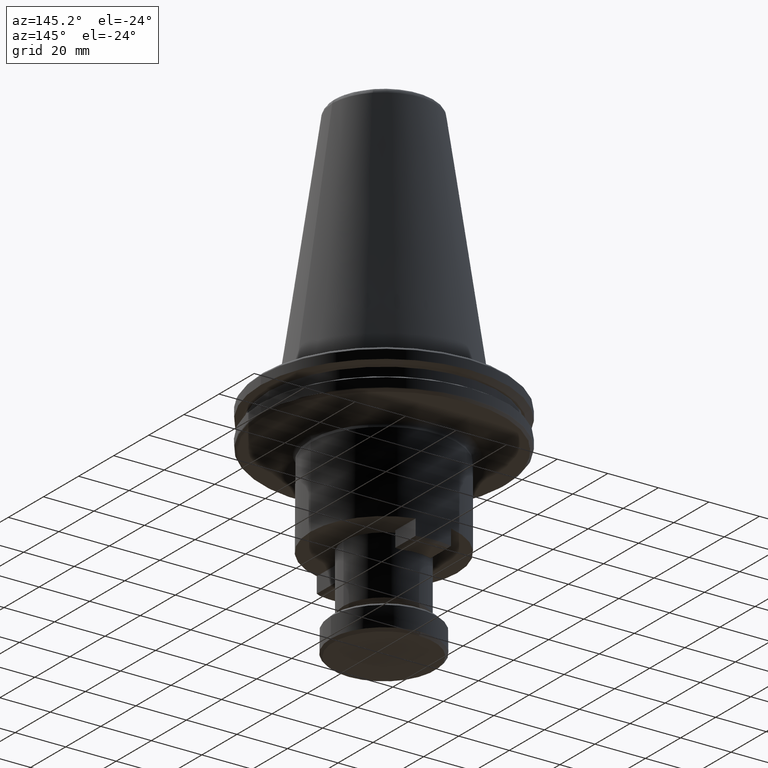
[diagram: clean part render]
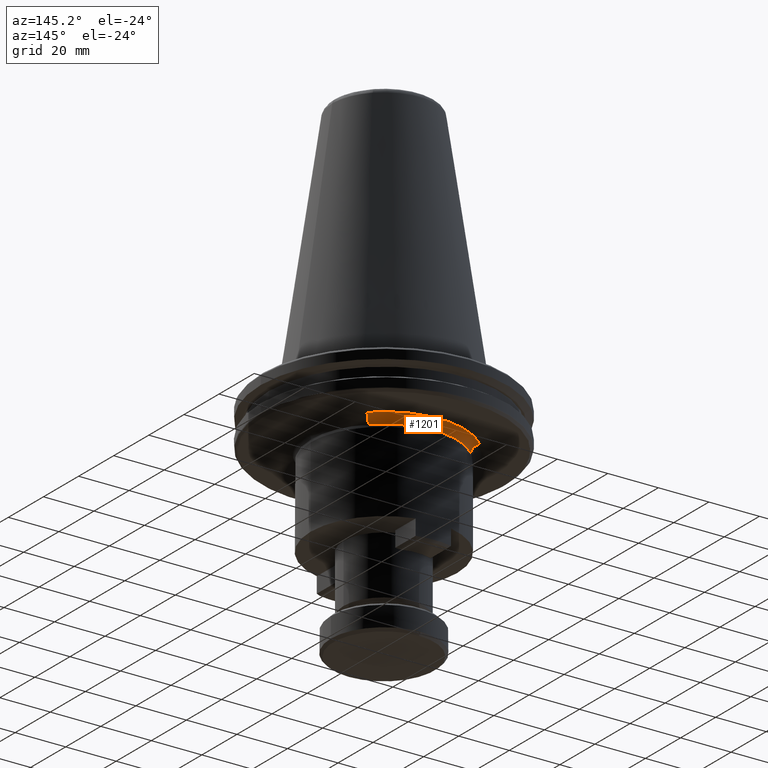
[diagram: same view with one face highlighted and labeled with its STEP entity id]
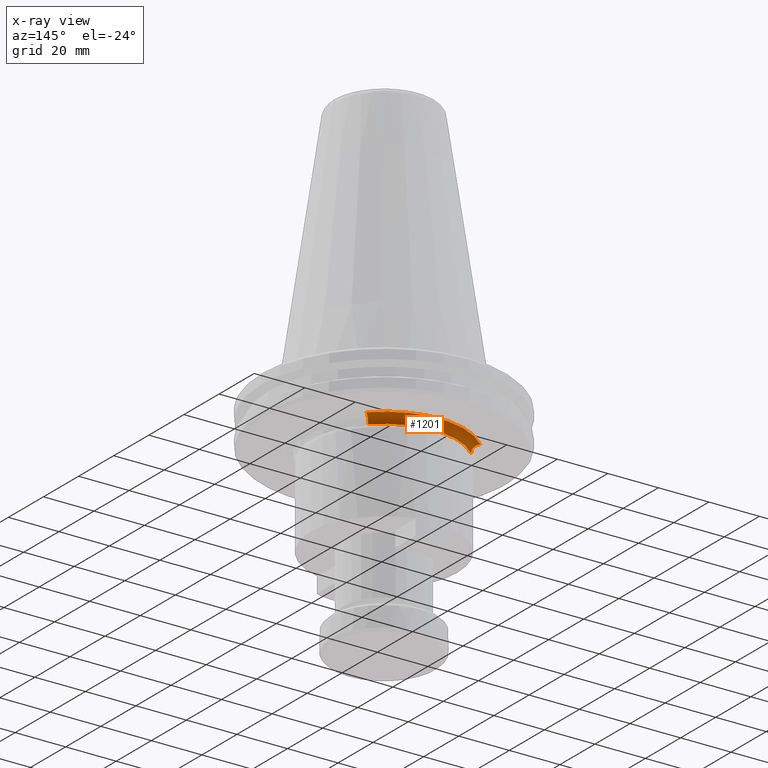
[diagram: x-ray of the same camera — body ghosted, the highlighted face saturated]
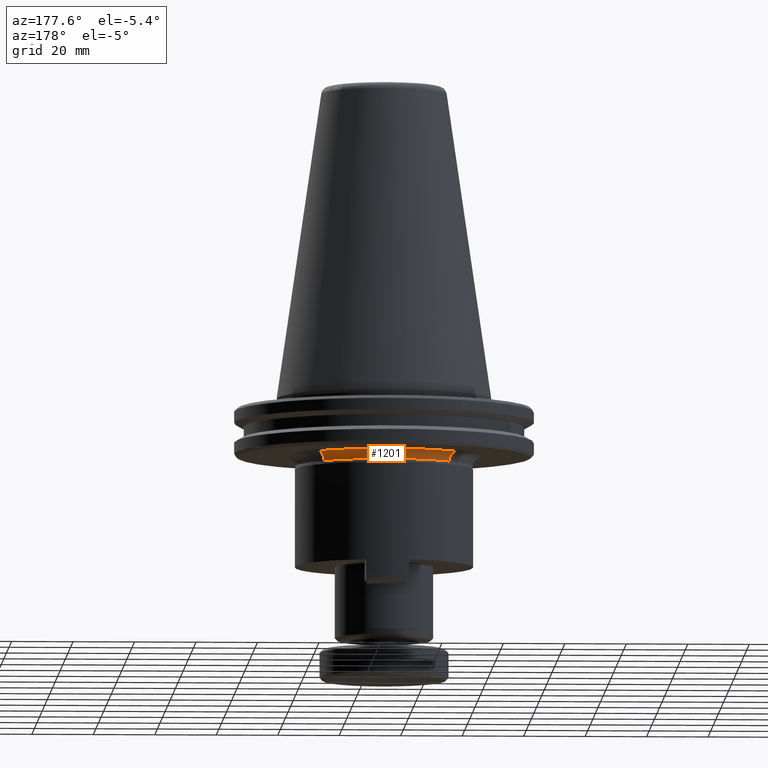
[diagram: same view with one face highlighted and labeled with its STEP entity id]
A machine part, auxiliary view. The second image highlights one B-rep face of the part: STEP entity #1201.
The next image is the same camera in x-ray: the body ghosted, the highlighted face saturated — about 0% of this face is hidden behind the body in this view.
A second angle (auxiliary view) of the same face is appended — the face is thin or edge-on in the first view.
In plain terms, the highlighted toroidal blend (fillet) surface has major radius 31.8 mm and minor (blend) radius 3 mm.
Its self-contained STEP definition (entity closure, byte-faithful):
#17 = DIRECTION ( 'NONE',  ( -0.0000000000000000000, -0.0000000000000000000, -1.000000000000000000 ) ) ;
#65 = CARTESIAN_POINT ( 'NONE',  ( 91.78900745422478700, 111.8872747687010000, 75.89950278000849000 ) ) ;
#125 = AXIS2_PLACEMENT_3D ( 'NONE', #65, #17, #4940 ) ;
#147 = CARTESIAN_POINT ( 'NONE',  ( 113.0323624108361900, 133.1306297253894100, 78.89950278028037200 ) ) ;
#403 = ORIENTED_EDGE ( 'NONE', *, *, #2907, .T. ) ;
#420 = DIRECTION ( 'NONE',  ( -0.0000000000000000000, -0.0000000000000000000, -1.000000000000000000 ) ) ;
#432 =( BOUNDED_CURVE ( )  B_SPLINE_CURVE ( 3, ( #4012, #1301, #147, #2850 ),
 .UNSPECIFIED., .F., .F. ) 
 B_SPLINE_CURVE_WITH_KNOTS ( ( 4, 4 ),
 ( 0.0000000000000000000, 0.004686477919127288700 ),
 .UNSPECIFIED. ) 
 CURVE ( )  GEOMETRIC_REPRESENTATION_ITEM ( )  RATIONAL_B_SPLINE_CURVE ( ( 0.5603505959675825200, 0.4509353361155097900, 0.4509353362434101500, 0.5603505963512829300 ) ) 
 REPRESENTATION_ITEM ( '' )  );
#573 = EDGE_LOOP ( 'NONE', ( #4118, #2963, #403, #3418 ) ) ;
#957 = CARTESIAN_POINT ( 'NONE',  ( 70.54565249761334700, 133.1306297253893800, 78.89950278028040000 ) ) ;
#1044 = VERTEX_POINT ( 'NONE', #4808 ) ;
#1128 = FACE_OUTER_BOUND ( 'NONE', #573, .T. ) ;
#1190 = TOROIDAL_SURFACE ( 'NONE', #4186, 31.80000001239289300, 3.000000013688315800 ) ;
#1201 = ADVANCED_FACE ( 'NONE', ( #1128 ), #1190, .F. ) ;
#1301 = CARTESIAN_POINT ( 'NONE',  ( 112.1536827530675900, 132.2519500672640000, 77.65686209428039900 ) ) ;
#1413 = CARTESIAN_POINT ( 'NONE',  ( 71.42433215696819100, 132.2519500659575400, 75.89950277928048200 ) ) ;
#1752 = CARTESIAN_POINT ( 'NONE',  ( 114.2751277787167800, 134.3733950931930700, 78.89950277698491700 ) ) ;
#1848 = EDGE_CURVE ( 'NONE', #2738, #4743, #4902, .T. ) ;
#2378 = EDGE_CURVE ( 'NONE', #4743, #3536, #432, .T. ) ;
#2471 = CARTESIAN_POINT ( 'NONE',  ( 71.42433215538199000, 132.2519500672639800, 77.65686209428039900 ) ) ;
#2535 =( BOUNDED_CURVE ( )  B_SPLINE_CURVE ( 3, ( #4789, #2471, #957, #3663 ),
 .UNSPECIFIED., .F., .F. ) 
 B_SPLINE_CURVE_WITH_KNOTS ( ( 4, 4 ),
 ( 0.0000000000000000000, 0.004686477919127371100 ),
 .UNSPECIFIED. ) 
 CURVE ( )  GEOMETRIC_REPRESENTATION_ITEM ( )  RATIONAL_B_SPLINE_CURVE ( ( 0.5603505959675828500, 0.4509353361155100700, 0.4509353362434104200, 0.5603505963512832600 ) ) 
 REPRESENTATION_ITEM ( '' )  );
#2550 = EDGE_CURVE ( 'NONE', #2738, #1044, #2535, .T. ) ;
#2738 = VERTEX_POINT ( 'NONE', #1413 ) ;
#2744 = CARTESIAN_POINT ( 'NONE',  ( 91.78900745422478700, 111.8872747687010000, 78.89950277698491700 ) ) ;
#2850 = CARTESIAN_POINT ( 'NONE',  ( 114.2751277787167800, 134.3733950931930700, 78.89950277698491700 ) ) ;
#2907 = EDGE_CURVE ( 'NONE', #1044, #3536, #4010, .T. ) ;
#2910 = AXIS2_PLACEMENT_3D ( 'NONE', #2744, #420, #3153 ) ;
#2947 = DIRECTION ( 'NONE',  ( -1.000000000000000000, 0.0000000000000000000, 0.0000000000000000000 ) ) ;
#2963 = ORIENTED_EDGE ( 'NONE', *, *, #2550, .T. ) ;
#3153 = DIRECTION ( 'NONE',  ( -1.000000000000000000, 0.0000000000000000000, 0.0000000000000000000 ) ) ;
#3186 = CARTESIAN_POINT ( 'NONE',  ( 91.78900745422478700, 111.8872747687010000, 75.89950278000849000 ) ) ;
#3250 = DIRECTION ( 'NONE',  ( -0.0000000000000000000, -0.0000000000000000000, -1.000000000000000000 ) ) ;
#3418 = ORIENTED_EDGE ( 'NONE', *, *, #2378, .F. ) ;
#3536 = VERTEX_POINT ( 'NONE', #1752 ) ;
#3663 = CARTESIAN_POINT ( 'NONE',  ( 69.30288712973273800, 134.3733950931929800, 78.89950277698491700 ) ) ;
#4010 = CIRCLE ( 'NONE', #2910, 31.80017632804991800 ) ;
#4012 = CARTESIAN_POINT ( 'NONE',  ( 112.1536827514813300, 132.2519500659576000, 75.89950277928048200 ) ) ;
#4118 = ORIENTED_EDGE ( 'NONE', *, *, #1848, .F. ) ;
#4186 = AXIS2_PLACEMENT_3D ( 'NONE', #3186, #3250, #2947 ) ;
#4333 = CARTESIAN_POINT ( 'NONE',  ( 112.1536827514813300, 132.2519500659576000, 75.89950277928048200 ) ) ;
#4743 = VERTEX_POINT ( 'NONE', #4333 ) ;
#4789 = CARTESIAN_POINT ( 'NONE',  ( 71.42433215696819100, 132.2519500659575400, 75.89950277928048200 ) ) ;
#4808 = CARTESIAN_POINT ( 'NONE',  ( 69.30288712973273800, 134.3733950931929800, 78.89950277698491700 ) ) ;
#4902 = CIRCLE ( 'NONE', #125, 28.79999999870457100 ) ;
#4940 = DIRECTION ( 'NONE',  ( -1.000000000000000000, 0.0000000000000000000, 0.0000000000000000000 ) ) ;